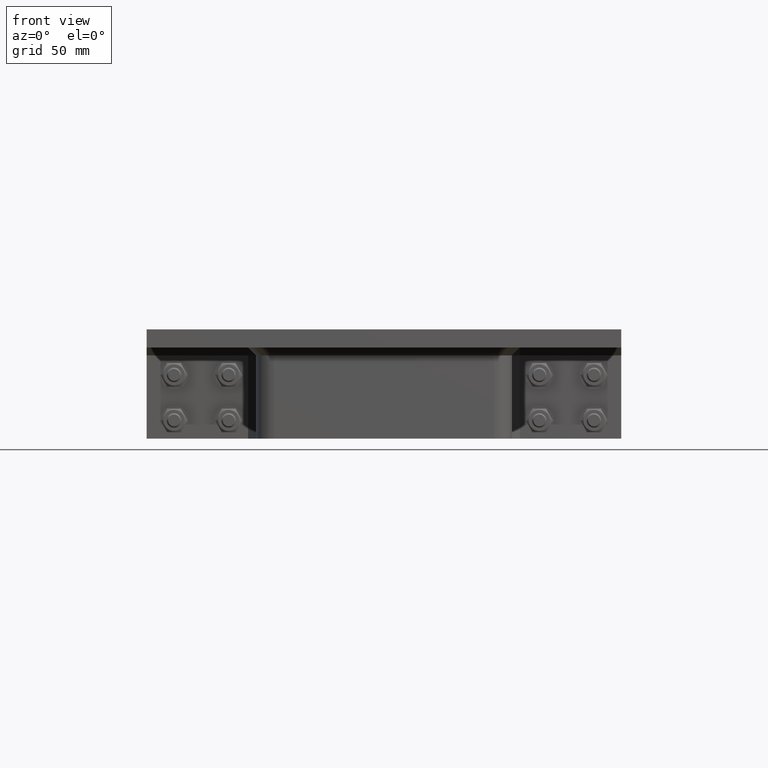
[diagram: clean part render]
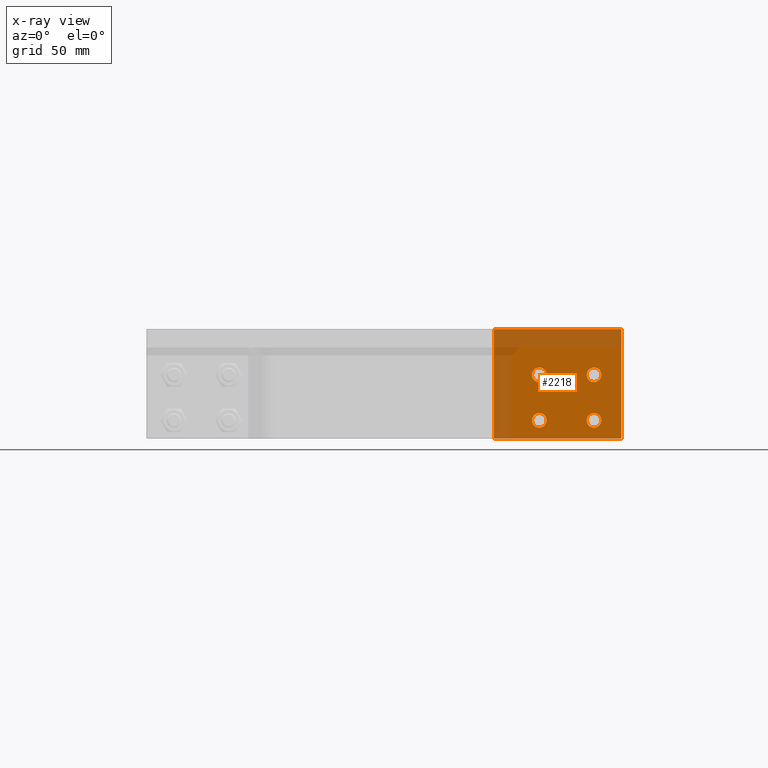
[diagram: x-ray — body ghosted, one internal face saturated and labeled with its STEP entity id]
A machine part, front view, then the same camera in x-ray: the body is ghosted and one INTERNAL B-rep face — a face not visible from any outside direction — is saturated and labeled: STEP entity #2218.
In plain terms, the highlighted planar face has unit normal (0, 1, -0).
Its self-contained STEP definition (entity closure, byte-faithful):
#222=FACE_BOUND('',#599,.T.);
#223=FACE_BOUND('',#600,.T.);
#224=FACE_BOUND('',#601,.T.);
#225=FACE_BOUND('',#602,.T.);
#303=CIRCLE('',#2563,4.);
#305=CIRCLE('',#2566,4.);
#307=CIRCLE('',#2569,4.);
#309=CIRCLE('',#2572,4.);
#426=FACE_OUTER_BOUND('',#598,.T.);
#598=EDGE_LOOP('',(#1866,#1867,#1868,#1869));
#599=EDGE_LOOP('',(#1870));
#600=EDGE_LOOP('',(#1871));
#601=EDGE_LOOP('',(#1872));
#602=EDGE_LOOP('',(#1873));
#784=LINE('',#3708,#956);
#788=LINE('',#3716,#960);
#791=LINE('',#3722,#963);
#794=LINE('',#3727,#966);
#956=VECTOR('',#3071,10.);
#960=VECTOR('',#3077,10.);
#963=VECTOR('',#3082,10.);
#966=VECTOR('',#3087,10.);
#1123=VERTEX_POINT('',#3684);
#1125=VERTEX_POINT('',#3690);
#1127=VERTEX_POINT('',#3696);
#1129=VERTEX_POINT('',#3702);
#1130=VERTEX_POINT('',#3706);
#1131=VERTEX_POINT('',#3707);
#1134=VERTEX_POINT('',#3715);
#1136=VERTEX_POINT('',#3721);
#1373=EDGE_CURVE('',#1123,#1123,#303,.T.);
#1376=EDGE_CURVE('',#1125,#1125,#305,.T.);
#1379=EDGE_CURVE('',#1127,#1127,#307,.T.);
#1382=EDGE_CURVE('',#1129,#1129,#309,.T.);
#1383=EDGE_CURVE('',#1130,#1131,#784,.T.);
#1387=EDGE_CURVE('',#1131,#1134,#788,.T.);
#1390=EDGE_CURVE('',#1134,#1136,#791,.T.);
#1393=EDGE_CURVE('',#1136,#1130,#794,.T.);
#1866=ORIENTED_EDGE('',*,*,#1393,.T.);
#1867=ORIENTED_EDGE('',*,*,#1383,.T.);
#1868=ORIENTED_EDGE('',*,*,#1387,.T.);
#1869=ORIENTED_EDGE('',*,*,#1390,.T.);
#1870=ORIENTED_EDGE('',*,*,#1373,.T.);
#1871=ORIENTED_EDGE('',*,*,#1376,.T.);
#1872=ORIENTED_EDGE('',*,*,#1379,.T.);
#1873=ORIENTED_EDGE('',*,*,#1382,.T.);
#2118=PLANE('',#2577);
#2218=ADVANCED_FACE('',(#426,#222,#223,#224,#225),#2118,.F.);
#2563=AXIS2_PLACEMENT_3D('',#3686,#3046,#3047);
#2566=AXIS2_PLACEMENT_3D('',#3692,#3053,#3054);
#2569=AXIS2_PLACEMENT_3D('',#3698,#3060,#3061);
#2572=AXIS2_PLACEMENT_3D('',#3704,#3067,#3068);
#2577=AXIS2_PLACEMENT_3D('',#3729,#3089,#3090);
#3046=DIRECTION('center_axis',(0.,0.,1.));
#3047=DIRECTION('ref_axis',(1.,0.,0.));
#3053=DIRECTION('center_axis',(0.,0.,1.));
#3054=DIRECTION('ref_axis',(1.,0.,0.));
#3060=DIRECTION('center_axis',(0.,0.,1.));
#3061=DIRECTION('ref_axis',(1.,0.,0.));
#3067=DIRECTION('center_axis',(0.,0.,1.));
#3068=DIRECTION('ref_axis',(1.,0.,0.));
#3071=DIRECTION('',(2.22044604925031E-16,-1.,0.));
#3077=DIRECTION('',(-1.,0.,0.));
#3082=DIRECTION('',(2.22044604925031E-16,1.,0.));
#3087=DIRECTION('',(1.,0.,0.));
#3089=DIRECTION('center_axis',(0.,0.,1.));
#3090=DIRECTION('ref_axis',(1.,0.,0.));
#3684=CARTESIAN_POINT('',(6.,-20.,0.));
#3686=CARTESIAN_POINT('Origin',(10.,-20.,0.));
#3690=CARTESIAN_POINT('',(-24.,5.00000000000001,0.));
#3692=CARTESIAN_POINT('Origin',(-20.,5.00000000000001,0.));
#3696=CARTESIAN_POINT('',(6.,5.00000000000001,0.));
#3698=CARTESIAN_POINT('Origin',(10.,5.00000000000001,0.));
#3702=CARTESIAN_POINT('',(-24.,-20.,0.));
#3704=CARTESIAN_POINT('Origin',(-20.,-20.,0.));
#3706=CARTESIAN_POINT('',(35.,30.,0.));
#3707=CARTESIAN_POINT('',(35.,-30.,0.));
#3708=CARTESIAN_POINT('',(35.,30.,0.));
#3715=CARTESIAN_POINT('',(-35.,-30.,0.));
#3716=CARTESIAN_POINT('',(35.,-30.,0.));
#3721=CARTESIAN_POINT('',(-35.,30.,0.));
#3722=CARTESIAN_POINT('',(-35.,-30.,0.));
#3727=CARTESIAN_POINT('',(-35.,30.,0.));
#3729=CARTESIAN_POINT('Origin',(0.,5.12410626750072E-15,0.));